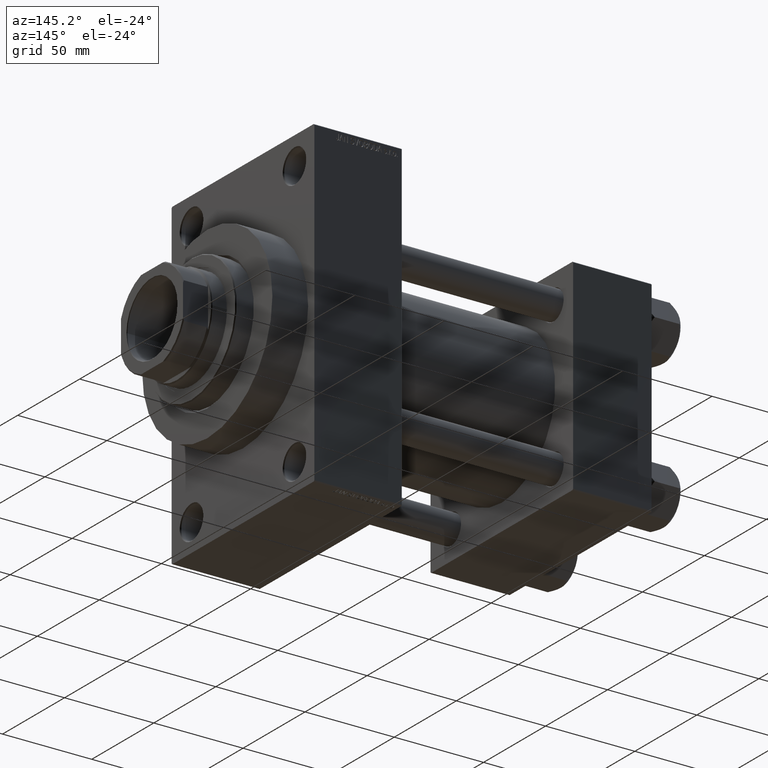
[diagram: clean part render]
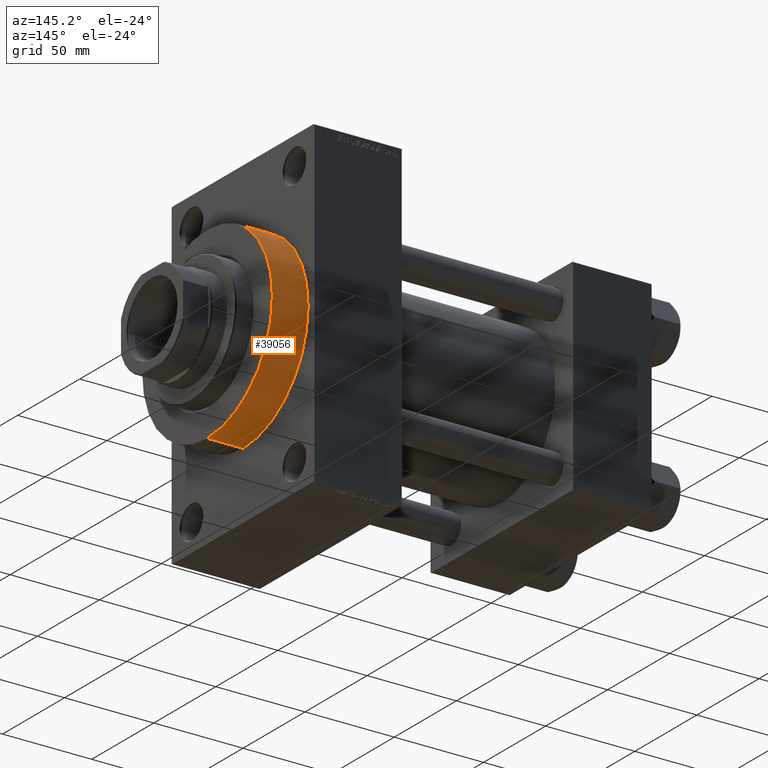
[diagram: same view with one face highlighted and labeled with its STEP entity id]
A machine part, auxiliary view. The second image highlights one B-rep face of the part: STEP entity #39056.
In plain terms, the highlighted cylindrical surface (partial cylindrical patch) has radius 52.5 mm, axis along (-1, -0, -0).
Its self-contained STEP definition (entity closure, byte-faithful):
#719 = EDGE_CURVE ( 'NONE', #39900, #36758, #34461, .T. ) ;
#1145 = DIRECTION ( 'NONE',  ( -1.000000000000000000, -0.000000000000000000, -0.000000000000000000 ) ) ;
#1302 = DIRECTION ( 'NONE',  ( 0.000000000000000000, 0.000000000000000000, -1.000000000000000000 ) ) ;
#3118 = EDGE_CURVE ( 'NONE', #39887, #36758, #14175, .T. ) ;
#6664 = DIRECTION ( 'NONE',  ( 0.000000000000000000, 0.000000000000000000, -1.000000000000000000 ) ) ;
#6686 = AXIS2_PLACEMENT_3D ( 'NONE', #13124, #41826, #1302 ) ;
#7101 = VECTOR ( 'NONE', #41922, 1000.000000000000000 ) ;
#7335 = ORIENTED_EDGE ( 'NONE', *, *, #35630, .T. ) ;
#9750 = CIRCLE ( 'NONE', #6686, 52.50000000000000711 ) ;
#12741 = CARTESIAN_POINT ( 'NONE',  ( 209.0000000000000000, 0.000000000000000000, 52.50000000000000711 ) ) ;
#13124 = CARTESIAN_POINT ( 'NONE',  ( 209.0000000000000000, 0.000000000000000000, 0.000000000000000000 ) ) ;
#13813 = CARTESIAN_POINT ( 'NONE',  ( 189.0000000000000000, 6.429395695523604744E-15, -52.50000000000000711 ) ) ;
#14175 = CIRCLE ( 'NONE', #34962, 52.50000000000000711 ) ;
#19175 = VECTOR ( 'NONE', #34884, 1000.000000000000000 ) ;
#21396 = DIRECTION ( 'NONE',  ( 1.000000000000000000, 0.000000000000000000, 0.000000000000000000 ) ) ;
#22792 = VERTEX_POINT ( 'NONE', #36759 ) ;
#22865 = LINE ( 'NONE', #41414, #19175 ) ;
#23641 = ORIENTED_EDGE ( 'NONE', *, *, #3118, .T. ) ;
#26024 = CYLINDRICAL_SURFACE ( 'NONE', #30675, 52.50000000000000711 ) ;
#26979 = DIRECTION ( 'NONE',  ( 0.000000000000000000, 0.000000000000000000, 1.000000000000000000 ) ) ;
#28383 = CARTESIAN_POINT ( 'NONE',  ( 189.0000000000000000, 0.000000000000000000, 0.000000000000000000 ) ) ;
#29861 = FACE_OUTER_BOUND ( 'NONE', #34116, .T. ) ;
#30675 = AXIS2_PLACEMENT_3D ( 'NONE', #40723, #1145, #26979 ) ;
#31707 = EDGE_CURVE ( 'NONE', #22792, #39900, #9750, .T. ) ;
#34116 = EDGE_LOOP ( 'NONE', ( #35103, #7335, #23641, #40195 ) ) ;
#34461 = LINE ( 'NONE', #12741, #7101 ) ;
#34884 = DIRECTION ( 'NONE',  ( -1.000000000000000000, -0.000000000000000000, -0.000000000000000000 ) ) ;
#34962 = AXIS2_PLACEMENT_3D ( 'NONE', #28383, #21396, #6664 ) ;
#35103 = ORIENTED_EDGE ( 'NONE', *, *, #31707, .F. ) ;
#35630 = EDGE_CURVE ( 'NONE', #22792, #39887, #22865, .T. ) ;
#36624 = CARTESIAN_POINT ( 'NONE',  ( 189.0000000000000000, 0.000000000000000000, 52.50000000000000711 ) ) ;
#36758 = VERTEX_POINT ( 'NONE', #36624 ) ;
#36759 = CARTESIAN_POINT ( 'NONE',  ( 209.0000000000000000, 6.429395695523604744E-15, -52.50000000000000711 ) ) ;
#39056 = ADVANCED_FACE ( 'NONE', ( #29861 ), #26024, .T. ) ;
#39602 = CARTESIAN_POINT ( 'NONE',  ( 209.0000000000000000, 0.000000000000000000, 52.50000000000000711 ) ) ;
#39887 = VERTEX_POINT ( 'NONE', #13813 ) ;
#39900 = VERTEX_POINT ( 'NONE', #39602 ) ;
#40195 = ORIENTED_EDGE ( 'NONE', *, *, #719, .F. ) ;
#40723 = CARTESIAN_POINT ( 'NONE',  ( 209.0000000000000000, 0.000000000000000000, 0.000000000000000000 ) ) ;
#41414 = CARTESIAN_POINT ( 'NONE',  ( 209.0000000000000000, 6.429395695523604744E-15, -52.50000000000000711 ) ) ;
#41826 = DIRECTION ( 'NONE',  ( 1.000000000000000000, 0.000000000000000000, 0.000000000000000000 ) ) ;
#41922 = DIRECTION ( 'NONE',  ( -1.000000000000000000, -0.000000000000000000, -0.000000000000000000 ) ) ;